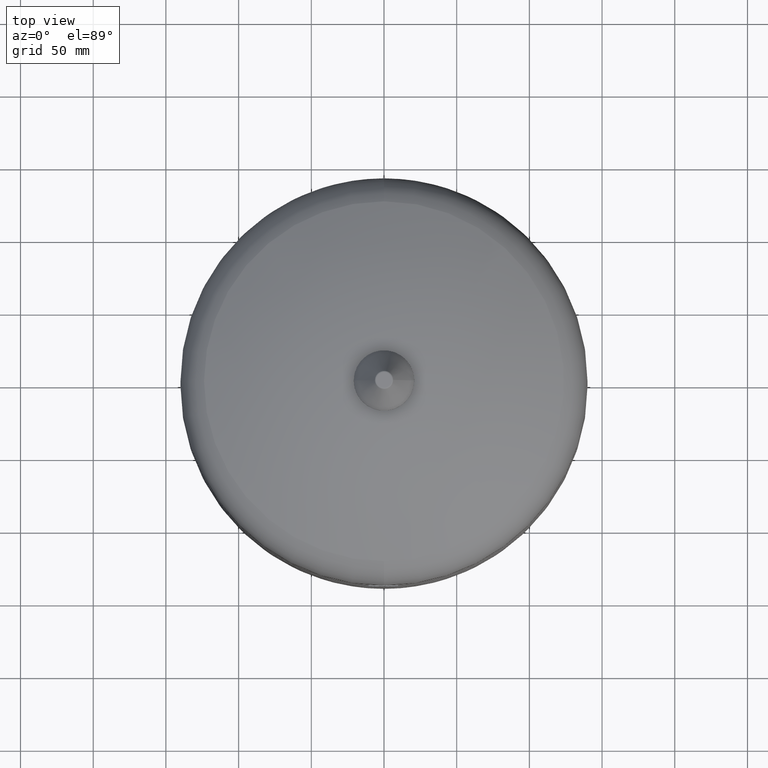
[diagram: clean part render]
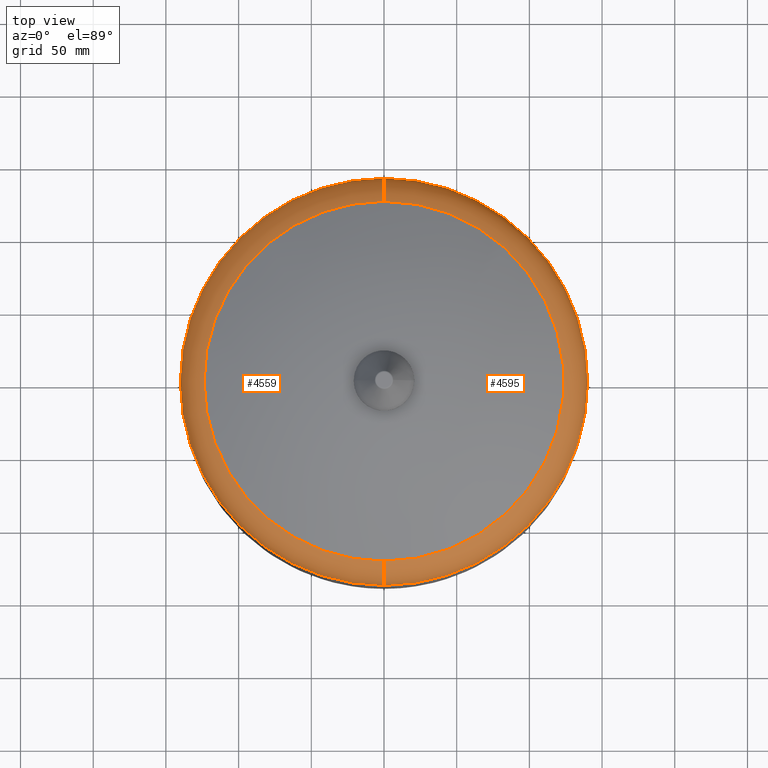
[diagram: same view with one multi-face feature highlighted, each face labeled with its STEP entity id]
A machine part, top view. The highlighted faces form ONE feature: a constant-radius fillet chain: 2 tangent blend faces with common blend radius 29 mm. The faces share edges in the B-rep.
Their STEP definitions:
[1] entity #4595 (Torus):
#4481=CARTESIAN_POINT('',(140.0,-1.721693E-014,229.236601813234530));
#4482=VERTEX_POINT('',#4481);
#4489=CARTESIAN_POINT('',(-1.000425E-014,-140.0,229.236601813234470));
#4490=VERTEX_POINT('',#4489);
#4491=CARTESIAN_POINT('',(-4.569998E-017,-7.243841E-017,229.236601813234500));
#4492=DIRECTION('',(0.0,0.0,-1.0));
#4493=DIRECTION('',(-1.0,0.0,0.0));
#4494=AXIS2_PLACEMENT_3D('',#4491,#4492,#4493);
#4495=CIRCLE('',#4494,140.0);
#4496=EDGE_CURVE('',#4482,#4490,#4495,.T.);
#4513=CARTESIAN_POINT('',(7.140239E-015,140.0,229.236601813234560));
#4514=VERTEX_POINT('',#4513);
#4515=CARTESIAN_POINT('',(2.111510E-015,123.773809523809520,255.271766307614630));
#4516=VERTEX_POINT('',#4515);
#4517=CARTESIAN_POINT('',(7.140239E-015,111.000000000000010,229.236601813234530));
#4518=DIRECTION('',(1.0,0.0,0.0));
#4519=DIRECTION('',(0.0,1.0,0.0));
#4520=AXIS2_PLACEMENT_3D('',#4517,#4518,#4519);
#4521=CIRCLE('',#4520,29.000000000000004);
#4522=EDGE_CURVE('',#4514,#4516,#4521,.T.);
#4532=CARTESIAN_POINT('',(-1.304591E-014,-123.773809523809550,255.271766307614600));
#4533=VERTEX_POINT('',#4532);
#4534=CARTESIAN_POINT('',(-6.452891E-015,-111.000000000000010,229.236601813234420));
#4535=DIRECTION('',(-1.0,0.0,0.0));
#4536=DIRECTION('',(0.0,-1.0,0.0));
#4537=AXIS2_PLACEMENT_3D('',#4534,#4535,#4536);
#4538=CIRCLE('',#4537,29.000000000000004);
#4539=EDGE_CURVE('',#4490,#4533,#4538,.T.);
#4567=CARTESIAN_POINT('',(-5.074429E-015,-8.043409E-015,255.271766307614630));
#4568=DIRECTION('',(0.0,0.0,-1.0));
#4569=DIRECTION('',(-1.0,0.0,0.0));
#4570=AXIS2_PLACEMENT_3D('',#4567,#4568,#4569);
#4571=CIRCLE('',#4570,123.773809523809530);
#4572=EDGE_CURVE('',#4516,#4533,#4571,.T.);
#4577=CARTESIAN_POINT('',(7.140239E-015,-7.243841E-017,229.236601813234470));
#4578=DIRECTION('',(1.931514E-016,3.061617E-016,-1.0));
#4579=DIRECTION('',(0.0,1.0,0.0));
#4580=AXIS2_PLACEMENT_3D('',#4577,#4578,#4579);
#4581=TOROIDAL_SURFACE('',#4580,111.000000000000010,29.000000000000004);
#4582=ORIENTED_EDGE('',*,*,#4522,.T.);
#4583=ORIENTED_EDGE('',*,*,#4572,.T.);
#4584=ORIENTED_EDGE('',*,*,#4539,.F.);
#4585=ORIENTED_EDGE('',*,*,#4496,.F.);
#4586=CARTESIAN_POINT('',(-4.569998E-017,-7.243841E-017,229.236601813234500));
#4587=DIRECTION('',(0.0,0.0,-1.0));
#4588=DIRECTION('',(-1.0,0.0,0.0));
#4589=AXIS2_PLACEMENT_3D('',#4586,#4587,#4588);
#4590=CIRCLE('',#4589,140.0);
#4591=EDGE_CURVE('',#4514,#4482,#4590,.T.);
#4592=ORIENTED_EDGE('',*,*,#4591,.F.);
#4593=EDGE_LOOP('',(#4582,#4583,#4584,#4585,#4592));
#4594=FACE_OUTER_BOUND('',#4593,.T.);
#4595=ADVANCED_FACE('',(#4594),#4581,.T.);
[2] entity #4559 (Torus):
#4464=CARTESIAN_POINT('',(-139.999999999999970,-7.243841E-017,229.236601813234470));
#4465=VERTEX_POINT('',#4464);
#4489=CARTESIAN_POINT('',(-1.000425E-014,-140.0,229.236601813234470));
#4490=VERTEX_POINT('',#4489);
#4498=CARTESIAN_POINT('',(-4.569998E-017,-7.243841E-017,229.236601813234500));
#4499=DIRECTION('',(0.0,0.0,-1.0));
#4500=DIRECTION('',(-1.0,0.0,0.0));
#4501=AXIS2_PLACEMENT_3D('',#4498,#4499,#4500);
#4502=CIRCLE('',#4501,140.0);
#4503=EDGE_CURVE('',#4490,#4465,#4502,.T.);
#4508=CARTESIAN_POINT('',(7.140239E-015,-7.243841E-017,229.236601813234470));
#4509=DIRECTION('',(1.931514E-016,3.061617E-016,-1.0));
#4510=DIRECTION('',(0.0,1.0,0.0));
#4511=AXIS2_PLACEMENT_3D('',#4508,#4509,#4510);
#4512=TOROIDAL_SURFACE('',#4511,111.000000000000010,29.000000000000004);
#4513=CARTESIAN_POINT('',(7.140239E-015,140.0,229.236601813234560));
#4514=VERTEX_POINT('',#4513);
#4515=CARTESIAN_POINT('',(2.111510E-015,123.773809523809520,255.271766307614630));
#4516=VERTEX_POINT('',#4515);
#4517=CARTESIAN_POINT('',(7.140239E-015,111.000000000000010,229.236601813234530));
#4518=DIRECTION('',(1.0,0.0,0.0));
#4519=DIRECTION('',(0.0,1.0,0.0));
#4520=AXIS2_PLACEMENT_3D('',#4517,#4518,#4519);
#4521=CIRCLE('',#4520,29.000000000000004);
#4522=EDGE_CURVE('',#4514,#4516,#4521,.T.);
#4523=ORIENTED_EDGE('',*,*,#4522,.F.);
#4524=CARTESIAN_POINT('',(-4.569998E-017,-7.243841E-017,229.236601813234500));
#4525=DIRECTION('',(0.0,0.0,-1.0));
#4526=DIRECTION('',(-1.0,0.0,0.0));
#4527=AXIS2_PLACEMENT_3D('',#4524,#4525,#4526);
#4528=CIRCLE('',#4527,140.0);
#4529=EDGE_CURVE('',#4465,#4514,#4528,.T.);
#4530=ORIENTED_EDGE('',*,*,#4529,.F.);
#4531=ORIENTED_EDGE('',*,*,#4503,.F.);
#4532=CARTESIAN_POINT('',(-1.304591E-014,-123.773809523809550,255.271766307614600));
#4533=VERTEX_POINT('',#4532);
#4534=CARTESIAN_POINT('',(-6.452891E-015,-111.000000000000010,229.236601813234420));
#4535=DIRECTION('',(-1.0,0.0,0.0));
#4536=DIRECTION('',(0.0,-1.0,0.0));
#4537=AXIS2_PLACEMENT_3D('',#4534,#4535,#4536);
#4538=CIRCLE('',#4537,29.000000000000004);
#4539=EDGE_CURVE('',#4490,#4533,#4538,.T.);
#4540=ORIENTED_EDGE('',*,*,#4539,.T.);
#4541=CARTESIAN_POINT('',(-123.773809523809550,-8.043409E-015,255.271766307614600));
#4542=VERTEX_POINT('',#4541);
#4543=CARTESIAN_POINT('',(-5.074429E-015,-8.043409E-015,255.271766307614630));
#4544=DIRECTION('',(0.0,0.0,-1.0));
#4545=DIRECTION('',(-1.0,0.0,0.0));
#4546=AXIS2_PLACEMENT_3D('',#4543,#4544,#4545);
#4547=CIRCLE('',#4546,123.773809523809530);
#4548=EDGE_CURVE('',#4533,#4542,#4547,.T.);
#4549=ORIENTED_EDGE('',*,*,#4548,.T.);
#4550=CARTESIAN_POINT('',(-5.074429E-015,-8.043409E-015,255.271766307614630));
#4551=DIRECTION('',(0.0,0.0,-1.0));
#4552=DIRECTION('',(-1.0,0.0,0.0));
#4553=AXIS2_PLACEMENT_3D('',#4550,#4551,#4552);
#4554=CIRCLE('',#4553,123.773809523809530);
#4555=EDGE_CURVE('',#4542,#4516,#4554,.T.);
#4556=ORIENTED_EDGE('',*,*,#4555,.T.);
#4557=EDGE_LOOP('',(#4523,#4530,#4531,#4540,#4549,#4556));
#4558=FACE_OUTER_BOUND('',#4557,.T.);
#4559=ADVANCED_FACE('',(#4558),#4512,.T.);